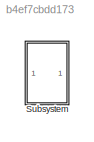
MODEL slx_b4ef7cbdd173
KIND model
CONFIG AbsTol = auto
CONFIG EnableMultiTasking = off
CONFIG FixedStep = auto
CONFIG MaxStep = 2^-5
CONFIG MinStep = auto
CONFIG RelTol = 1e-3
CONFIG SampleTimeConstraint = Unconstrained
CONFIG Solver = ode45
CONFIG SolverName = ode45
CONFIG StartTime = 0.0
CONFIG StopTime = 15
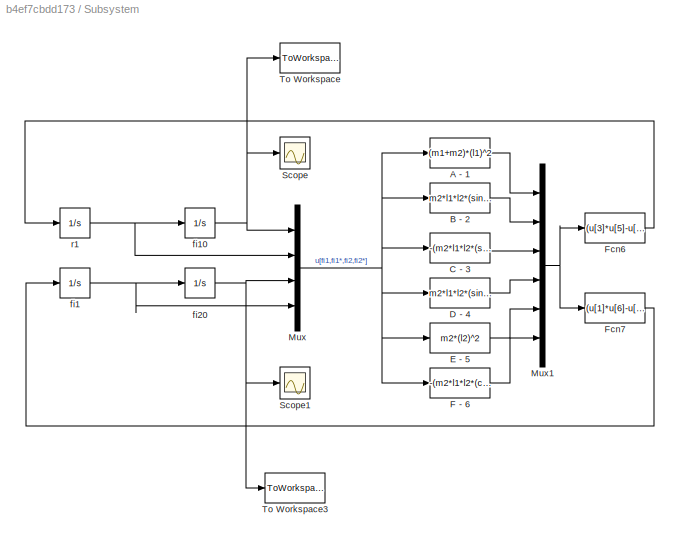
BLOCK [SubSystem] Subsystem
  Ports = []
  RequestExecContextInheritance = off
BLOCK [Fcn] Subsystem/A - 1
  Expr = (m1+m2)*(l1)^2
BLOCK [Fcn] Subsystem/B - 2
  Expr = m2*l1*l2*(sin(u[1])*sin(u[3])+cos(u[1])*cos(u[3]))
BLOCK [Fcn] Subsystem/C - 3
  Expr = -(m2*l1*l2*(sin(u[1])*cos(u[3])-cos(u[1])*sin(u[3]))*(u[4])^2 + (m1+m2)*g*(l1)*sin(u[1])+k1*(l1)^2*u[2]+k2*l1*l2*(sin(u[1])*sin(u[3])+cos(u[1])*cos(u[3]))*u[4])
BLOCK [Fcn] Subsystem/D - 4
  Expr = m2*l1*l2*(sin(u[1])*sin(u[3])+cos(u[1])*cos(u[3]))
BLOCK [Fcn] Subsystem/E - 5
  Expr = m2*(l2)^2
BLOCK [Fcn] Subsystem/F - 6
  Expr = -(m2*l1*l2*(cos(u[1])*sin(u[3])-sin(u[1])*cos(u[3]))*(u[2])^2 + m2*g*l2*sin(u[3])+k2*(l2)^2*u[4]+k2*l1*l2*(sin(u[1])*sin(u[3])+cos(u[1])*cos(u[3]))*u[2])
BLOCK [Fcn] Subsystem/Fcn6
  Expr = (u[3]*u[5]-u[2]*u[6])/(u[1]*u[5]-u[2]*u[4])
BLOCK [Fcn] Subsystem/Fcn7
  Expr = (u[1]*u[6]-u[3]*u[4])/(u[1]*u[5]-u[2]*u[4])
BLOCK [Mux] Subsystem/Mux
  DisplayOption = bar
  Ports = [4, 1]
BLOCK [Mux] Subsystem/Mux1
  DisplayOption = bar
  Inputs = 6
  Ports = [6, 1]
BLOCK [Scope] Subsystem/Scope
  Floating = off
  NumInputPorts = 1
  Ports = [1]
  ScopeSpecificationString = Simulink.scopes.TimeScopeBlockCfg('CurrentConfiguration', extmgr.ConfigurationSet(extmgr.Configuration('Core','General UI',true),extmgr.Configuration('Core','Source UI',true),extmgr.Configuration('Sources','WiredSimulink',true),extmgr.Configuration('Visuals','Time Domain',true,'SerializedDisplays',{struct('MinYLimReal','-1.96132','MaxYLimReal','1.76933','YLabelReal','','MinYLimMag','0.00000','MaxY...<+1353ch>
BLOCK [Scope] Subsystem/Scope1
  Floating = off
  NumInputPorts = 1
  Ports = [1]
  ScopeSpecificationString = Simulink.scopes.TimeScopeBlockCfg('CurrentConfiguration', extmgr.ConfigurationSet(extmgr.Configuration('Core','General UI',true),extmgr.Configuration('Core','Source UI',true),extmgr.Configuration('Sources','WiredSimulink',true,'DataLoggingVariableName','ScopeData1'),extmgr.Configuration('Visuals','Time Domain',true,'SerializedDisplays',{struct('MinYLimReal','-1.33482','MaxYLimReal','3.0572','YLabe...<+1388ch>
BLOCK [ToWorkspace] Subsystem/To Workspace
  FixptAsFi = on
  MaxDataPoints = inf
  Ports = [1]
  SampleTime = -1
  Save2DSignal = 3-D array (concatenate along third dimension)
  VariableName = fi10
BLOCK [ToWorkspace] Subsystem/To Workspace3
  FixptAsFi = on
  MaxDataPoints = inf
  Ports = [1]
  SampleTime = -1
  Save2DSignal = 3-D array (concatenate along third dimension)
  VariableName = fi20
BLOCK [Integrator] Subsystem/fi1
  Ports = [1, 1]
BLOCK [Integrator] Subsystem/fi10
  InitialCondition = fi10*pi/180
  Ports = [1, 1]
BLOCK [Integrator] Subsystem/fi20
  InitialCondition = fi20*pi/180
  Ports = [1, 1]
BLOCK [Integrator] Subsystem/r1
  Ports = [1, 1]
LINE Subsystem/A - 1:1 -> Subsystem/Mux1:1
LINE Subsystem/B - 2:1 -> Subsystem/Mux1:2
LINE Subsystem/C - 3:1 -> Subsystem/Mux1:3
LINE Subsystem/D - 4:1 -> Subsystem/Mux1:4
LINE Subsystem/E - 5:1 -> Subsystem/Mux1:5
LINE Subsystem/F - 6:1 -> Subsystem/Mux1:6
LINE Subsystem/Fcn6:1 -> Subsystem/r1:1
LINE Subsystem/Fcn7:1 -> Subsystem/fi1:1
NET Subsystem/Mux1:1 -> Subsystem/Fcn6:1, Subsystem/Fcn7:1
NET Subsystem/Mux:1 -> Subsystem/A - 1:1, Subsystem/B - 2:1, Subsystem/C - 3:1, Subsystem/D - 4:1, Subsystem/E - 5:1, Subsystem/F - 6:1
NET Subsystem/fi10:1 -> Subsystem/Mux:1, Subsystem/Scope:1, Subsystem/To Workspace:1
NET Subsystem/fi1:1 -> Subsystem/Mux:4, Subsystem/fi20:1
NET Subsystem/fi20:1 -> Subsystem/Mux:3, Subsystem/Scope1:1, Subsystem/To Workspace3:1
NET Subsystem/r1:1 -> Subsystem/Mux:2, Subsystem/fi10:1
note: NET lines group one-source signal fan-out (src -> all destinations, sorted); 1:1 wires keep LINE
